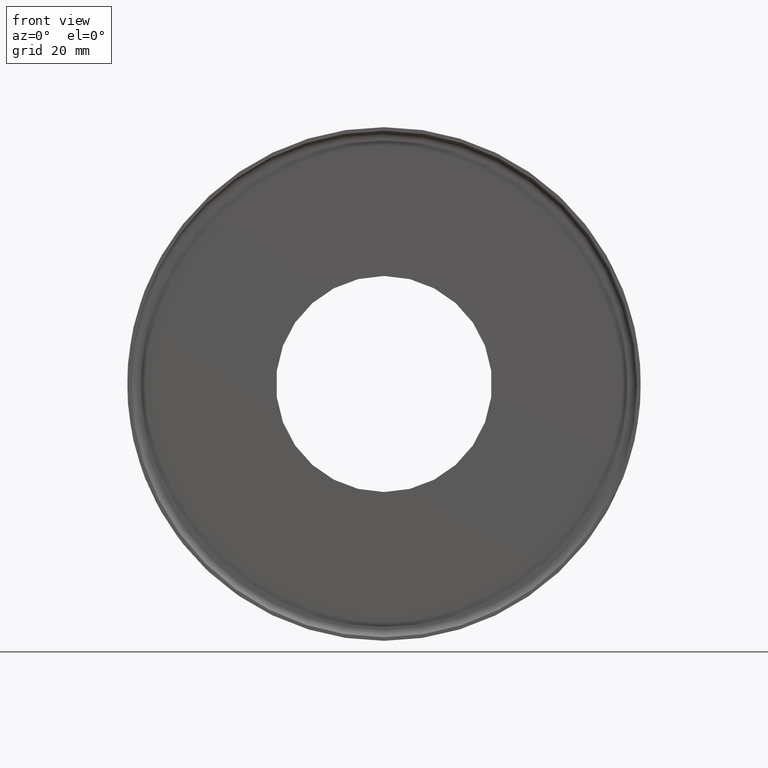
[diagram: clean part render]
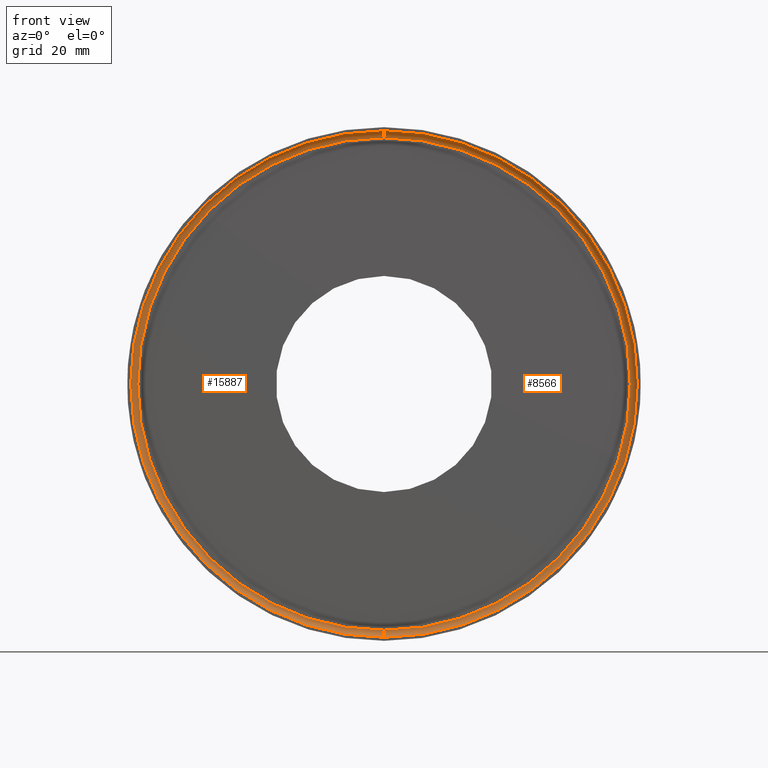
[diagram: same view with one multi-face feature highlighted, each face labeled with its STEP entity id]
A machine part, front view. The highlighted faces form ONE feature: a constant-radius fillet chain: 2 tangent blend faces with common blend radius 2 mm. The faces share edges in the B-rep.
Their STEP definitions:
[1] entity #15887 (Torus):
#928 = EDGE_CURVE ( 'NONE', #5961, #6275, #16074, .T. ) ;
#985 = ORIENTED_EDGE ( 'NONE', *, *, #11485, .T. ) ;
#1211 = EDGE_CURVE ( 'NONE', #4857, #5961, #15273, .T. ) ;
#1472 = VERTEX_POINT ( 'NONE', #15076 ) ;
#3161 = DIRECTION ( 'NONE',  ( 0.000000000000000000, 0.000000000000000000, 1.000000000000000000 ) ) ;
#3456 = EDGE_LOOP ( 'NONE', ( #14389, #985, #8356, #10679 ) ) ;
#3473 = CARTESIAN_POINT ( 'NONE',  ( 0.000000000000000000, 22.00000000000000355, 0.000000000000000000 ) ) ;
#3901 = DIRECTION ( 'NONE',  ( 0.000000000000000000, 0.000000000000000000, -1.000000000000000000 ) ) ;
#4345 = CARTESIAN_POINT ( 'NONE',  ( 0.000000000000000000, 22.00000000000000355, -69.49999999999998579 ) ) ;
#4630 = CARTESIAN_POINT ( 'NONE',  ( 0.000000000000000000, 24.00000000000000000, -69.49999999999998579 ) ) ;
#4656 = EDGE_CURVE ( 'NONE', #1472, #6275, #6336, .T. ) ;
#4857 = VERTEX_POINT ( 'NONE', #10608 ) ;
#5387 = CARTESIAN_POINT ( 'NONE',  ( 0.000000000000000000, 22.00000000000000355, 0.000000000000000000 ) ) ;
#5961 = VERTEX_POINT ( 'NONE', #4630 ) ;
#5963 = DIRECTION ( 'NONE',  ( -0.000000000000000000, -1.000000000000000000, -0.000000000000000000 ) ) ;
#6108 = FACE_OUTER_BOUND ( 'NONE', #3456, .T. ) ;
#6239 = DIRECTION ( 'NONE',  ( -1.224646799147349509E-16, 0.000000000000000000, -1.000000000000000000 ) ) ;
#6275 = VERTEX_POINT ( 'NONE', #15649 ) ;
#6336 = CIRCLE ( 'NONE', #12051, 71.50000000000000000 ) ;
#6871 = TOROIDAL_SURFACE ( 'NONE', #14280, 69.49999999999998579, 2.000000000000000000 ) ;
#7674 = DIRECTION ( 'NONE',  ( -0.000000000000000000, -1.000000000000000000, -0.000000000000000000 ) ) ;
#8342 = AXIS2_PLACEMENT_3D ( 'NONE', #11164, #10013, #6239 ) ;
#8350 = DIRECTION ( 'NONE',  ( 0.000000000000000000, 0.000000000000000000, -1.000000000000000000 ) ) ;
#8356 = ORIENTED_EDGE ( 'NONE', *, *, #4656, .T. ) ;
#8924 = CARTESIAN_POINT ( 'NONE',  ( 0.000000000000000000, 24.00000000000000000, 0.000000000000000000 ) ) ;
#9209 = DIRECTION ( 'NONE',  ( -1.000000000000000000, 0.000000000000000000, 0.000000000000000000 ) ) ;
#9237 = CIRCLE ( 'NONE', #8342, 2.000000000000001776 ) ;
#9260 = DIRECTION ( 'NONE',  ( 0.000000000000000000, 0.000000000000000000, -1.000000000000000000 ) ) ;
#10013 = DIRECTION ( 'NONE',  ( 1.000000000000000000, 0.000000000000000000, -1.224646799147353207E-16 ) ) ;
#10579 = AXIS2_PLACEMENT_3D ( 'NONE', #8924, #7674, #3901 ) ;
#10608 = CARTESIAN_POINT ( 'NONE',  ( 8.633759933988838989E-15, 24.00000000000000000, 69.49999999999998579 ) ) ;
#10679 = ORIENTED_EDGE ( 'NONE', *, *, #928, .F. ) ;
#11164 = CARTESIAN_POINT ( 'NONE',  ( 8.511295254074103841E-15, 22.00000000000000355, 69.49999999999998579 ) ) ;
#11318 = AXIS2_PLACEMENT_3D ( 'NONE', #4345, #9209, #3161 ) ;
#11485 = EDGE_CURVE ( 'NONE', #4857, #1472, #9237, .T. ) ;
#12051 = AXIS2_PLACEMENT_3D ( 'NONE', #3473, #5963, #8350 ) ;
#14261 = DIRECTION ( 'NONE',  ( -0.000000000000000000, -1.000000000000000000, -0.000000000000000000 ) ) ;
#14280 = AXIS2_PLACEMENT_3D ( 'NONE', #5387, #14261, #9260 ) ;
#14389 = ORIENTED_EDGE ( 'NONE', *, *, #1211, .F. ) ;
#15076 = CARTESIAN_POINT ( 'NONE',  ( 8.756224613903574137E-15, 22.00000000000000355, 71.50000000000000000 ) ) ;
#15273 = CIRCLE ( 'NONE', #10579, 69.49999999999998579 ) ;
#15649 = CARTESIAN_POINT ( 'NONE',  ( 0.000000000000000000, 22.00000000000000355, -71.50000000000000000 ) ) ;
#15887 = ADVANCED_FACE ( 'NONE', ( #6108 ), #6871, .F. ) ;
#16074 = CIRCLE ( 'NONE', #11318, 2.000000000000001776 ) ;
[2] entity #8566 (Torus):
#130 = DIRECTION ( 'NONE',  ( -0.000000000000000000, -1.000000000000000000, -0.000000000000000000 ) ) ;
#367 = CARTESIAN_POINT ( 'NONE',  ( 0.000000000000000000, 22.00000000000000355, 0.000000000000000000 ) ) ;
#928 = EDGE_CURVE ( 'NONE', #5961, #6275, #16074, .T. ) ;
#1093 = AXIS2_PLACEMENT_3D ( 'NONE', #9081, #15251, #6598 ) ;
#1472 = VERTEX_POINT ( 'NONE', #15076 ) ;
#1520 = EDGE_CURVE ( 'NONE', #6275, #1472, #11798, .T. ) ;
#1685 = DIRECTION ( 'NONE',  ( 0.000000000000000000, 0.000000000000000000, -1.000000000000000000 ) ) ;
#2429 = TOROIDAL_SURFACE ( 'NONE', #1093, 69.49999999999998579, 2.000000000000000000 ) ;
#2471 = ORIENTED_EDGE ( 'NONE', *, *, #1520, .T. ) ;
#2738 = CARTESIAN_POINT ( 'NONE',  ( 0.000000000000000000, 24.00000000000000000, 0.000000000000000000 ) ) ;
#3161 = DIRECTION ( 'NONE',  ( 0.000000000000000000, 0.000000000000000000, 1.000000000000000000 ) ) ;
#4030 = ORIENTED_EDGE ( 'NONE', *, *, #928, .T. ) ;
#4345 = CARTESIAN_POINT ( 'NONE',  ( 0.000000000000000000, 22.00000000000000355, -69.49999999999998579 ) ) ;
#4630 = CARTESIAN_POINT ( 'NONE',  ( 0.000000000000000000, 24.00000000000000000, -69.49999999999998579 ) ) ;
#4857 = VERTEX_POINT ( 'NONE', #10608 ) ;
#5024 = CIRCLE ( 'NONE', #6773, 69.49999999999998579 ) ;
#5961 = VERTEX_POINT ( 'NONE', #4630 ) ;
#6239 = DIRECTION ( 'NONE',  ( -1.224646799147349509E-16, 0.000000000000000000, -1.000000000000000000 ) ) ;
#6275 = VERTEX_POINT ( 'NONE', #15649 ) ;
#6598 = DIRECTION ( 'NONE',  ( 0.000000000000000000, 0.000000000000000000, -1.000000000000000000 ) ) ;
#6773 = AXIS2_PLACEMENT_3D ( 'NONE', #2738, #130, #11389 ) ;
#8342 = AXIS2_PLACEMENT_3D ( 'NONE', #11164, #10013, #6239 ) ;
#8566 = ADVANCED_FACE ( 'NONE', ( #13851 ), #2429, .F. ) ;
#9081 = CARTESIAN_POINT ( 'NONE',  ( 0.000000000000000000, 22.00000000000000355, 0.000000000000000000 ) ) ;
#9209 = DIRECTION ( 'NONE',  ( -1.000000000000000000, 0.000000000000000000, 0.000000000000000000 ) ) ;
#9237 = CIRCLE ( 'NONE', #8342, 2.000000000000001776 ) ;
#9932 = EDGE_CURVE ( 'NONE', #5961, #4857, #5024, .T. ) ;
#10013 = DIRECTION ( 'NONE',  ( 1.000000000000000000, 0.000000000000000000, -1.224646799147353207E-16 ) ) ;
#10608 = CARTESIAN_POINT ( 'NONE',  ( 8.633759933988838989E-15, 24.00000000000000000, 69.49999999999998579 ) ) ;
#11164 = CARTESIAN_POINT ( 'NONE',  ( 8.511295254074103841E-15, 22.00000000000000355, 69.49999999999998579 ) ) ;
#11318 = AXIS2_PLACEMENT_3D ( 'NONE', #4345, #9209, #3161 ) ;
#11389 = DIRECTION ( 'NONE',  ( 0.000000000000000000, 0.000000000000000000, -1.000000000000000000 ) ) ;
#11485 = EDGE_CURVE ( 'NONE', #4857, #1472, #9237, .T. ) ;
#11567 = DIRECTION ( 'NONE',  ( -0.000000000000000000, -1.000000000000000000, -0.000000000000000000 ) ) ;
#11798 = CIRCLE ( 'NONE', #12147, 71.50000000000000000 ) ;
#12061 = ORIENTED_EDGE ( 'NONE', *, *, #11485, .F. ) ;
#12147 = AXIS2_PLACEMENT_3D ( 'NONE', #367, #11567, #1685 ) ;
#12309 = EDGE_LOOP ( 'NONE', ( #12061, #13421, #4030, #2471 ) ) ;
#13421 = ORIENTED_EDGE ( 'NONE', *, *, #9932, .F. ) ;
#13851 = FACE_OUTER_BOUND ( 'NONE', #12309, .T. ) ;
#15076 = CARTESIAN_POINT ( 'NONE',  ( 8.756224613903574137E-15, 22.00000000000000355, 71.50000000000000000 ) ) ;
#15251 = DIRECTION ( 'NONE',  ( -0.000000000000000000, -1.000000000000000000, -0.000000000000000000 ) ) ;
#15649 = CARTESIAN_POINT ( 'NONE',  ( 0.000000000000000000, 22.00000000000000355, -71.50000000000000000 ) ) ;
#16074 = CIRCLE ( 'NONE', #11318, 2.000000000000001776 ) ;